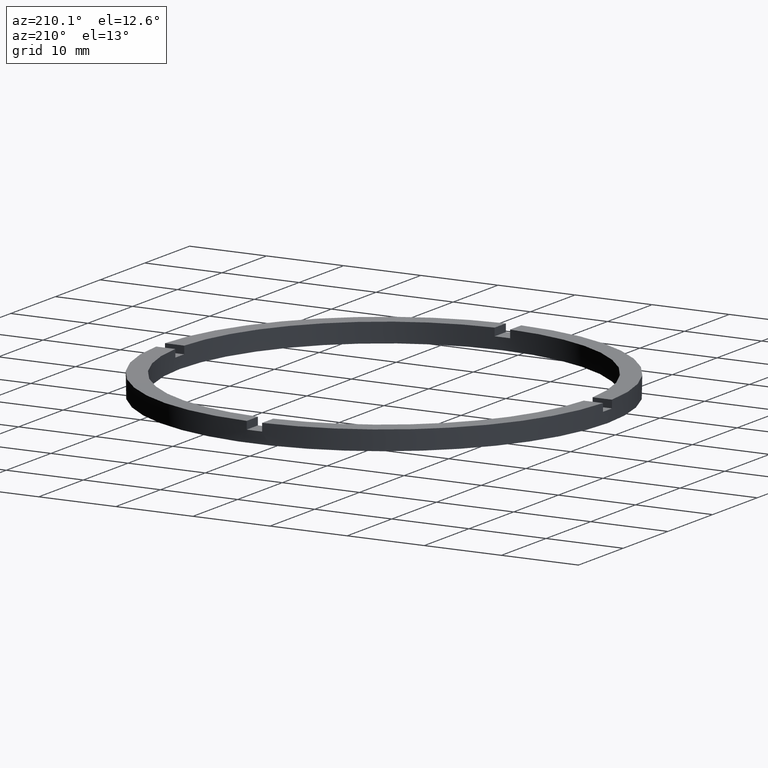
[diagram: clean part render]
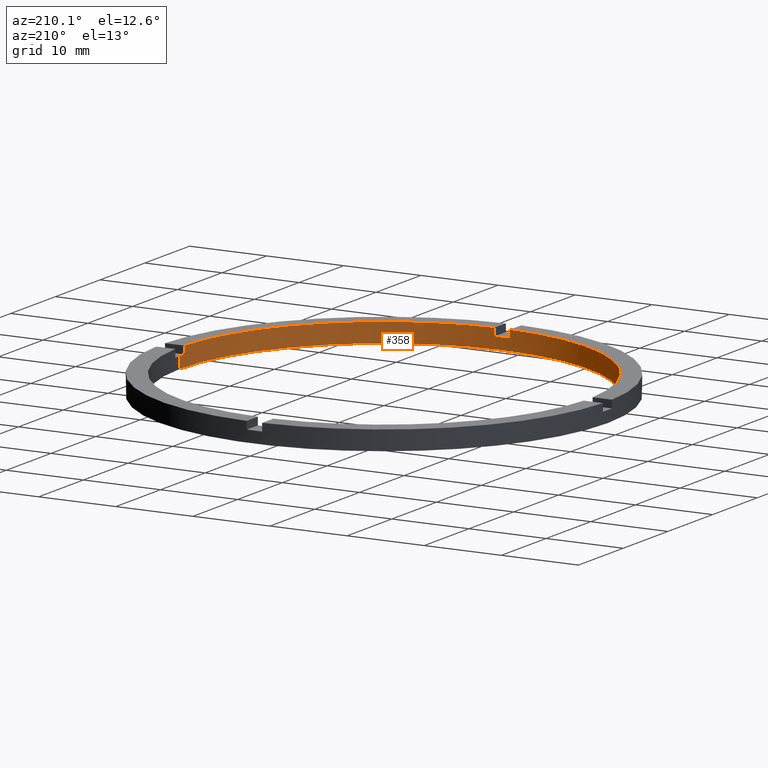
[diagram: same view with one face highlighted and labeled with its STEP entity id]
A machine part, auxiliary view. The second image highlights one B-rep face of the part: STEP entity #358.
In plain terms, the highlighted cylindrical surface (partial cylindrical patch) has radius 26.5 mm, axis along (-0, -0, -1).
Its self-contained STEP definition (entity closure, byte-faithful):
#10 = VERTEX_POINT ( 'NONE', #239 ) ;
#21 = EDGE_CURVE ( 'NONE', #65, #558, #81, .T. ) ;
#22 = EDGE_CURVE ( 'NONE', #461, #558, #599, .T. ) ;
#30 = ORIENTED_EDGE ( 'NONE', *, *, #301, .F. ) ;
#33 = ORIENTED_EDGE ( 'NONE', *, *, #21, .T. ) ;
#44 = EDGE_CURVE ( 'NONE', #445, #598, #85, .T. ) ;
#56 = AXIS2_PLACEMENT_3D ( 'NONE', #284, #293, #769 ) ;
#58 = ORIENTED_EDGE ( 'NONE', *, *, #506, .T. ) ;
#61 = CARTESIAN_POINT ( 'NONE',  ( -26.50000000000000355, 0.000000000000000000, 2.500000000000000000 ) ) ;
#65 = VERTEX_POINT ( 'NONE', #567 ) ;
#72 = ORIENTED_EDGE ( 'NONE', *, *, #44, .F. ) ;
#73 = CARTESIAN_POINT ( 'NONE',  ( 0.000000000000000000, 0.000000000000000000, 0.000000000000000000 ) ) ;
#81 = CIRCLE ( 'NONE', #56, 26.50000000000000355 ) ;
#82 = DIRECTION ( 'NONE',  ( 0.000000000000000000, 0.000000000000000000, 1.000000000000000000 ) ) ;
#85 = LINE ( 'NONE', #515, #347 ) ;
#86 = VECTOR ( 'NONE', #194, 1000.000000000000000 ) ;
#87 = CARTESIAN_POINT ( 'NONE',  ( 26.48112535373071807, -1.000000000000156986, 2.500000000000000000 ) ) ;
#99 = LINE ( 'NONE', #753, #368 ) ;
#100 = EDGE_CURVE ( 'NONE', #445, #568, #603, .T. ) ;
#134 = DIRECTION ( 'NONE',  ( 1.000000000000000000, 0.000000000000000000, 0.000000000000000000 ) ) ;
#139 = LINE ( 'NONE', #704, #143 ) ;
#140 = CARTESIAN_POINT ( 'NONE',  ( 0.9999999999998402389, -26.48112535373072873, 2.500000000000000000 ) ) ;
#141 = AXIS2_PLACEMENT_3D ( 'NONE', #218, #646, #338 ) ;
#143 = VECTOR ( 'NONE', #250, 1000.000000000000000 ) ;
#174 = VECTOR ( 'NONE', #371, 1000.000000000000000 ) ;
#180 = LINE ( 'NONE', #777, #174 ) ;
#185 = EDGE_CURVE ( 'NONE', #461, #683, #654, .T. ) ;
#193 = AXIS2_PLACEMENT_3D ( 'NONE', #73, #377, #134 ) ;
#194 = DIRECTION ( 'NONE',  ( -0.000000000000000000, -0.000000000000000000, -1.000000000000000000 ) ) ;
#199 = VERTEX_POINT ( 'NONE', #428 ) ;
#218 = CARTESIAN_POINT ( 'NONE',  ( 0.000000000000000000, 0.000000000000000000, 2.500000000000000000 ) ) ;
#225 = EDGE_LOOP ( 'NONE', ( #281, #58, #576, #543, #33, #539, #582, #545, #352, #72, #574, #30 ) ) ;
#232 = CARTESIAN_POINT ( 'NONE',  ( 0.000000000000000000, 0.000000000000000000, 2.500000000000000000 ) ) ;
#238 = AXIS2_PLACEMENT_3D ( 'NONE', #232, #774, #278 ) ;
#239 = CARTESIAN_POINT ( 'NONE',  ( -1.000000000000159872, -26.48112535373071807, 1.500000000000000000 ) ) ;
#250 = DIRECTION ( 'NONE',  ( 0.000000000000000000, 0.000000000000000000, 1.000000000000000000 ) ) ;
#259 = CARTESIAN_POINT ( 'NONE',  ( 26.50000000000000355, 3.245314017740486554E-15, 0.000000000000000000 ) ) ;
#260 = CARTESIAN_POINT ( 'NONE',  ( -1.000000000000159872, -26.48112535373071807, 2.500000000000000000 ) ) ;
#273 = VERTEX_POINT ( 'NONE', #259 ) ;
#278 = DIRECTION ( 'NONE',  ( 1.000000000000000000, 0.000000000000000000, 0.000000000000000000 ) ) ;
#281 = ORIENTED_EDGE ( 'NONE', *, *, #524, .T. ) ;
#284 = CARTESIAN_POINT ( 'NONE',  ( 0.000000000000000000, 0.000000000000000000, 1.500000000000000000 ) ) ;
#293 = DIRECTION ( 'NONE',  ( 0.000000000000000000, 0.000000000000000000, 1.000000000000000000 ) ) ;
#301 = EDGE_CURVE ( 'NONE', #323, #568, #139, .T. ) ;
#310 = CARTESIAN_POINT ( 'NONE',  ( -26.48112535373072163, -1.000000000000026867, 1.500000000000000000 ) ) ;
#323 = VERTEX_POINT ( 'NONE', #351 ) ;
#338 = DIRECTION ( 'NONE',  ( 1.000000000000000000, 0.000000000000000000, 0.000000000000000000 ) ) ;
#347 = VECTOR ( 'NONE', #627, 1000.000000000000000 ) ;
#351 = CARTESIAN_POINT ( 'NONE',  ( 26.48112535373071807, -1.000000000000156986, 1.500000000000000000 ) ) ;
#352 = ORIENTED_EDGE ( 'NONE', *, *, #690, .T. ) ;
#358 = ADVANCED_FACE ( 'NONE', ( #398 ), #421, .F. ) ;
#362 = AXIS2_PLACEMENT_3D ( 'NONE', #402, #628, #706 ) ;
#368 = VECTOR ( 'NONE', #643, 1000.000000000000000 ) ;
#371 = DIRECTION ( 'NONE',  ( -0.000000000000000000, -0.000000000000000000, -1.000000000000000000 ) ) ;
#377 = DIRECTION ( 'NONE',  ( 0.000000000000000000, 0.000000000000000000, 1.000000000000000000 ) ) ;
#378 = DIRECTION ( 'NONE',  ( -0.000000000000000000, -0.000000000000000000, -1.000000000000000000 ) ) ;
#398 = FACE_OUTER_BOUND ( 'NONE', #225, .T. ) ;
#402 = CARTESIAN_POINT ( 'NONE',  ( 0.000000000000000000, 0.000000000000000000, 1.500000000000000000 ) ) ;
#412 = EDGE_CURVE ( 'NONE', #65, #722, #419, .T. ) ;
#419 = LINE ( 'NONE', #61, #666 ) ;
#421 = CYLINDRICAL_SURFACE ( 'NONE', #687, 26.50000000000000355 ) ;
#427 = CARTESIAN_POINT ( 'NONE',  ( -26.48112535373072163, -1.000000000000026867, 2.500000000000000000 ) ) ;
#428 = CARTESIAN_POINT ( 'NONE',  ( 26.50000000000000355, 3.245314017740486554E-15, 1.500000000000000000 ) ) ;
#441 = CIRCLE ( 'NONE', #362, 26.50000000000000355 ) ;
#445 = VERTEX_POINT ( 'NONE', #140 ) ;
#461 = VERTEX_POINT ( 'NONE', #779 ) ;
#475 = CARTESIAN_POINT ( 'NONE',  ( 0.000000000000000000, 0.000000000000000000, 2.500000000000000000 ) ) ;
#502 = DIRECTION ( 'NONE',  ( 1.000000000000000000, 0.000000000000000000, 0.000000000000000000 ) ) ;
#506 = EDGE_CURVE ( 'NONE', #199, #273, #180, .T. ) ;
#515 = CARTESIAN_POINT ( 'NONE',  ( 0.9999999999998402389, -26.48112535373072873, 2.500000000000000000 ) ) ;
#524 = EDGE_CURVE ( 'NONE', #323, #199, #686, .T. ) ;
#539 = ORIENTED_EDGE ( 'NONE', *, *, #22, .F. ) ;
#543 = ORIENTED_EDGE ( 'NONE', *, *, #412, .F. ) ;
#545 = ORIENTED_EDGE ( 'NONE', *, *, #730, .F. ) ;
#552 = AXIS2_PLACEMENT_3D ( 'NONE', #701, #82, #502 ) ;
#556 = CARTESIAN_POINT ( 'NONE',  ( 0.9999999999998402389, -26.48112535373072873, 1.500000000000000000 ) ) ;
#558 = VERTEX_POINT ( 'NONE', #310 ) ;
#567 = CARTESIAN_POINT ( 'NONE',  ( -26.50000000000000355, 0.000000000000000000, 1.500000000000000000 ) ) ;
#568 = VERTEX_POINT ( 'NONE', #87 ) ;
#569 = EDGE_CURVE ( 'NONE', #722, #273, #697, .T. ) ;
#574 = ORIENTED_EDGE ( 'NONE', *, *, #100, .T. ) ;
#576 = ORIENTED_EDGE ( 'NONE', *, *, #569, .F. ) ;
#582 = ORIENTED_EDGE ( 'NONE', *, *, #185, .T. ) ;
#598 = VERTEX_POINT ( 'NONE', #556 ) ;
#599 = LINE ( 'NONE', #427, #86 ) ;
#603 = CIRCLE ( 'NONE', #141, 26.50000000000000355 ) ;
#627 = DIRECTION ( 'NONE',  ( -0.000000000000000000, -0.000000000000000000, -1.000000000000000000 ) ) ;
#628 = DIRECTION ( 'NONE',  ( -0.000000000000000000, 0.000000000000000000, 1.000000000000000000 ) ) ;
#643 = DIRECTION ( 'NONE',  ( 0.000000000000000000, 0.000000000000000000, 1.000000000000000000 ) ) ;
#646 = DIRECTION ( 'NONE',  ( 0.000000000000000000, 0.000000000000000000, 1.000000000000000000 ) ) ;
#654 = CIRCLE ( 'NONE', #238, 26.50000000000000355 ) ;
#666 = VECTOR ( 'NONE', #378, 1000.000000000000000 ) ;
#683 = VERTEX_POINT ( 'NONE', #260 ) ;
#686 = CIRCLE ( 'NONE', #552, 26.50000000000000355 ) ;
#687 = AXIS2_PLACEMENT_3D ( 'NONE', #475, #761, #717 ) ;
#690 = EDGE_CURVE ( 'NONE', #10, #598, #441, .T. ) ;
#697 = CIRCLE ( 'NONE', #193, 26.50000000000000355 ) ;
#701 = CARTESIAN_POINT ( 'NONE',  ( 0.000000000000000000, 0.000000000000000000, 1.500000000000000000 ) ) ;
#704 = CARTESIAN_POINT ( 'NONE',  ( 26.48112535373071807, -1.000000000000156986, 2.500000000000000000 ) ) ;
#706 = DIRECTION ( 'NONE',  ( 1.000000000000000000, 0.000000000000000000, 0.000000000000000000 ) ) ;
#717 = DIRECTION ( 'NONE',  ( -1.000000000000000000, 0.000000000000000000, 0.000000000000000000 ) ) ;
#722 = VERTEX_POINT ( 'NONE', #745 ) ;
#730 = EDGE_CURVE ( 'NONE', #10, #683, #99, .T. ) ;
#745 = CARTESIAN_POINT ( 'NONE',  ( -26.50000000000000355, 0.000000000000000000, 0.000000000000000000 ) ) ;
#753 = CARTESIAN_POINT ( 'NONE',  ( -1.000000000000159872, -26.48112535373071807, 2.500000000000000000 ) ) ;
#761 = DIRECTION ( 'NONE',  ( -0.000000000000000000, -0.000000000000000000, -1.000000000000000000 ) ) ;
#769 = DIRECTION ( 'NONE',  ( 1.000000000000000000, 0.000000000000000000, 0.000000000000000000 ) ) ;
#774 = DIRECTION ( 'NONE',  ( 0.000000000000000000, 0.000000000000000000, 1.000000000000000000 ) ) ;
#777 = CARTESIAN_POINT ( 'NONE',  ( 26.50000000000000355, 3.245314017740486554E-15, 2.500000000000000000 ) ) ;
#779 = CARTESIAN_POINT ( 'NONE',  ( -26.48112535373072163, -1.000000000000026867, 2.500000000000000000 ) ) ;